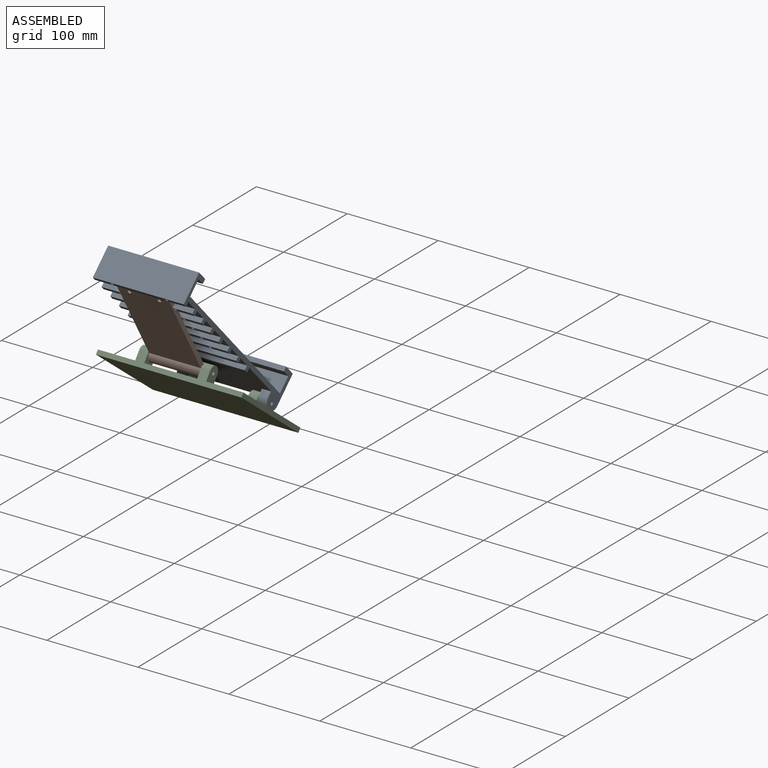
[diagram: assembled view]
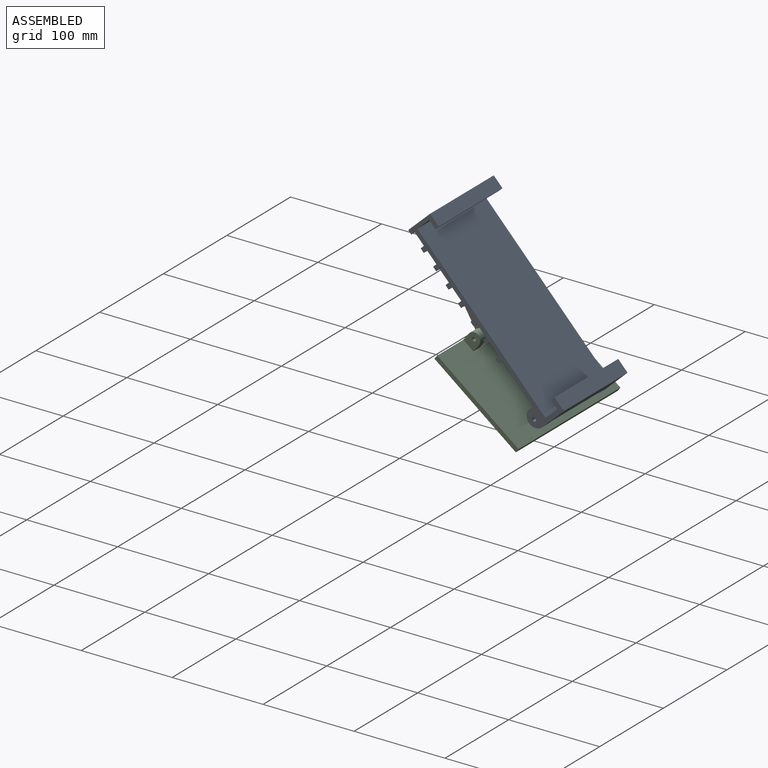
[diagram: assembled view, second angle]
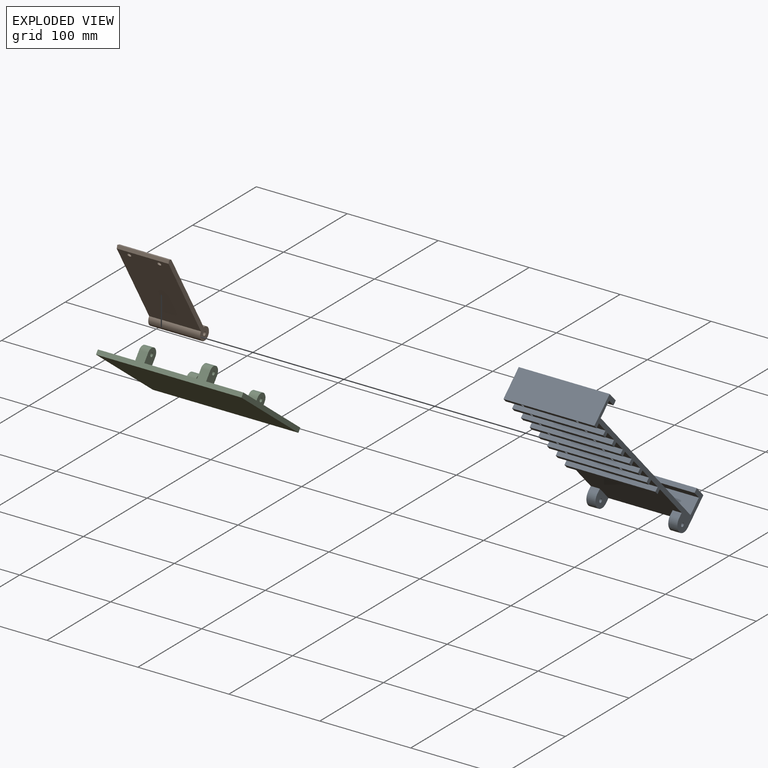
[diagram: exploded view]
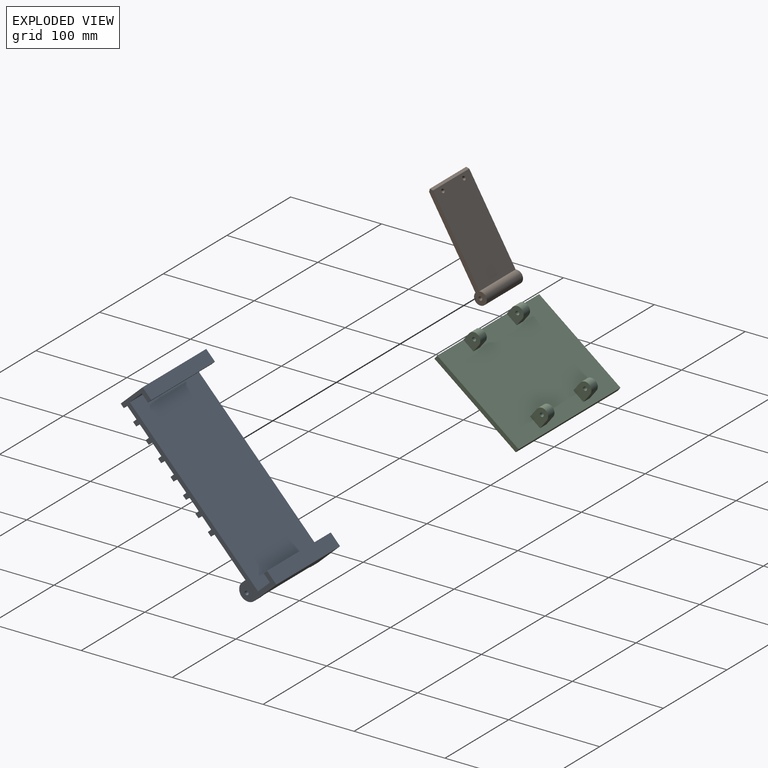
[diagram: exploded view, second angle]
ASSEMBLY  parts=3 mates=2
PART A: 76 faces, bbox 100x136.1x204 mm
  f0: plane 100x12.99mm, normal (0,-0.87,-0.5), area 1500mm2, adj f9,f11,f36,f69
  f1: plane 100x12.99mm, normal (0,-0.87,-0.5), area 1500mm2, adj f9,f11,f43,f62
  f2: plane 100x12.99mm, normal (0,-0.87,-0.5), area 1500mm2, adj f9,f11,f50,f55
  f3: plane 100x60.62mm, normal (0,-0.87,-0.5), area 6600mm2, adj f9,f11,f12,f21,f22,f23,f24,f52
  f4: plane 100x12.99mm, normal (0,-0.87,-0.5), area 1500mm2, adj f9,f11,f49,f53
  f5: plane 100x12.99mm, normal (0,-0.87,-0.5), area 1500mm2, adj f9,f11,f42,f56
  f6: plane 100x12.99mm, normal (0,-0.87,-0.5), area 1500mm2, adj f9,f11,f35,f63
  f7: plane 100x12.99mm, normal (0,-0.87,-0.5), area 1500mm2, adj f9,f11,f29,f70
  f8: plane 178.4x103mm, normal (0,0.87,0.5), area 20600mm2, adj f9,f11,f13,f17
  f9: plane 204.04x136.08mm, normal (-1,0,0), area 1825.2mm2, adj f0,f1,f2,f3,f4,f5,f6,f7
  f10: plane 100x28.58mm, normal (0,-0.5,0.87), area 3300mm2, adj f9,f11,f18,f30
  f11: plane 204.04x136.08mm, normal (1,0,0), area 1825.2mm2, adj f0,f1,f2,f3,f4,f5,f6,f7
  f12: plane 100x28.58mm, normal (0,0.5,-0.87), area 2900mm2, adj f3,f9,f11,f14,f22,f24,f25,f26
  f13: plane 100x15.59mm, normal (0,-0.5,0.87), area 1800mm2, adj f8,f9,f11,f15
  f14: plane 100x12.99mm, normal (0,0.87,0.5), area 1500mm2, adj f9,f11,f12,f16
  f15: plane 100x8.66mm, normal (0,-0.87,-0.5), area 1000mm2, adj f9,f11,f13,f16
  f16: plane 100x4.33mm, normal (0,-0.5,0.87), area 500mm2, adj f9,f11,f14,f15
  f17: plane 100x15.59mm, normal (0,0.5,-0.87), area 1800mm2, adj f8,f9,f11,f19
  f18: plane 100x12.12mm, normal (0,0.87,0.5), area 1400mm2, adj f9,f10,f11,f20
  f19: plane 100x8.66mm, normal (0,-0.87,-0.5), area 1000mm2, adj f9,f11,f17,f20
  f20: plane 100x4.33mm, normal (0,0.5,-0.87), area 500mm2, adj f9,f11,f18,f19
  f21: plane 10x4.33mm, normal (0,-0.5,0.87), area 50mm2, adj f3,f9,f22,f25
  f22: plane 21.16x19.33mm, normal (1,0,0), area 243.2mm2, adj f3,f12,f21,f25,f28
  f23: plane 10x4.33mm, normal (0,-0.5,0.87), area 50mm2, adj f3,f11,f24,f26
  f24: plane 21.16x19.33mm, normal (-1,0,0), area 243.2mm2, adj f3,f12,f23,f26,f27
  f25: cylinder r=10mm len=18.66mm, axis (1,0,0), area 314.2mm2, adj f9,f12,f21,f22
  f26: cylinder r=10mm len=18.66mm, axis (-1,0,0), area 314.2mm2, adj f11,f12,f23,f24
  f27: cylinder r=2.1mm len=10mm, axis (1,0,0), area 131.9mm2, adj f11,f24
  f28: cylinder r=2.1mm len=10mm, axis (1,0,0), area 131.9mm2, adj f9,f22
  f29: plane 100x4.33mm, normal (0,0.5,-0.87), area 500mm2, adj f7,f9,f11,f30
  f30: plane 100x4.33mm, normal (0,-0.87,-0.5), area 483.9mm2, adj f9,f10,f11,f29,f31,f33
  f31: cylinder r=1.6mm len=4.27mm, axis (0,-0.87,-0.5), area 30.2mm2, adj f30,f32
  f32: plane 3.2x2.77mm, normal (0,-0.87,-0.5), area 8mm2, adj f31
  f33: cylinder r=1.6mm len=4.27mm, axis (0,-0.87,-0.5), area 30.2mm2, adj f30,f34
  f34: plane 3.2x2.77mm, normal (0,-0.87,-0.5), area 8mm2, adj f33
  f35: plane 100x4.33mm, normal (0,0.5,-0.87), area 500mm2, adj f6,f9,f11,f37
  f36: plane 100x4.33mm, normal (0,-0.5,0.87), area 500mm2, adj f0,f9,f11,f37
  f37: plane 100x4.33mm, normal (0,-0.87,-0.5), area 483.9mm2, adj f9,f11,f35,f36,f38,f40
  f38: cylinder r=1.6mm len=4.27mm, axis (0,-0.87,-0.5), area 30.2mm2, adj f37,f39
  f39: plane 3.2x2.77mm, normal (0,-0.87,-0.5), area 8mm2, adj f38
  f40: cylinder r=1.6mm len=4.27mm, axis (0,-0.87,-0.5), area 30.2mm2, adj f37,f41
  f41: plane 3.2x2.77mm, normal (0,-0.87,-0.5), area 8mm2, adj f40
  f42: plane 100x4.33mm, normal (0,0.5,-0.87), area 500mm2, adj f5,f9,f11,f44
  f43: plane 100x4.33mm, normal (0,-0.5,0.87), area 500mm2, adj f1,f9,f11,f44
  f44: plane 100x4.33mm, normal (0,-0.87,-0.5), area 483.9mm2, adj f9,f11,f42,f43,f45,f47
  f45: cylinder r=1.6mm len=4.27mm, axis (0,-0.87,-0.5), area 30.2mm2, adj f44,f46
  f46: plane 3.2x2.77mm, normal (0,-0.87,-0.5), area 8mm2, adj f45
  f47: cylinder r=1.6mm len=4.27mm, axis (0,-0.87,-0.5), area 30.2mm2, adj f44,f48
  f48: plane 3.2x2.77mm, normal (0,-0.87,-0.5), area 8mm2, adj f47
  f49: plane 100x4.33mm, normal (0,0.5,-0.87), area 500mm2, adj f4,f9,f11,f51
  f50: plane 100x4.33mm, normal (0,-0.5,0.87), area 500mm2, adj f2,f9,f11,f51
  f51: plane 100x4.33mm, normal (0,-0.87,-0.5), area 500mm2, adj f9,f11,f49,f50
  f52: plane 100x4.33mm, normal (0,0.5,-0.87), area 500mm2, adj f3,f9,f11,f54
  f53: plane 100x4.33mm, normal (0,-0.5,0.87), area 500mm2, adj f4,f9,f11,f54
  f54: plane 100x4.33mm, normal (0,-0.87,-0.5), area 500mm2, adj f9,f11,f52,f53
  f55: plane 100x4.33mm, normal (0,0.5,-0.87), area 500mm2, adj f2,f9,f11,f57
  f56: plane 100x4.33mm, normal (0,-0.5,0.87), area 500mm2, adj f5,f9,f11,f57
  f57: plane 100x4.33mm, normal (0,-0.87,-0.5), area 483.9mm2, adj f9,f11,f55,f56,f58,f60
  f58: cylinder r=1.6mm len=4.27mm, axis (0,-0.87,-0.5), area 30.2mm2, adj f57,f59
  f59: plane 3.2x2.77mm, normal (0,-0.87,-0.5), area 8mm2, adj f58
  f60: cylinder r=1.6mm len=4.27mm, axis (0,-0.87,-0.5), area 30.2mm2, adj f57,f61
  f61: plane 3.2x2.77mm, normal (0,-0.87,-0.5), area 8mm2, adj f60
  f62: plane 100x4.33mm, normal (0,0.5,-0.87), area 500mm2, adj f1,f9,f11,f64
  f63: plane 100x4.33mm, normal (0,-0.5,0.87), area 500mm2, adj f6,f9,f11,f64
  f64: plane 100x4.33mm, normal (0,-0.87,-0.5), area 483.9mm2, adj f9,f11,f62,f63,f65,f67
  f65: cylinder r=1.6mm len=4.27mm, axis (0,-0.87,-0.5), area 30.2mm2, adj f64,f66
  f66: plane 3.2x2.77mm, normal (0,-0.87,-0.5), area 8mm2, adj f65
  f67: cylinder r=1.6mm len=4.27mm, axis (0,-0.87,-0.5), area 30.2mm2, adj f64,f68
  f68: plane 3.2x2.77mm, normal (0,-0.87,-0.5), area 8mm2, adj f67
  f69: plane 100x4.33mm, normal (0,0.5,-0.87), area 500mm2, adj f0,f9,f11,f71
  f70: plane 100x4.33mm, normal (0,-0.5,0.87), area 500mm2, adj f7,f9,f11,f71
  f71: plane 100x4.33mm, normal (0,-0.87,-0.5), area 483.9mm2, adj f9,f11,f69,f70,f72,f74
  f72: cylinder r=1.6mm len=4.27mm, axis (0,-0.87,-0.5), area 30.2mm2, adj f71,f73
  f73: plane 3.2x2.77mm, normal (0,-0.87,-0.5), area 8mm2, adj f72
  f74: cylinder r=1.6mm len=4.27mm, axis (0,-0.87,-0.5), area 30.2mm2, adj f71,f75
  f75: plane 3.2x2.77mm, normal (0,-0.87,-0.5), area 8mm2, adj f74
PART B: 10 faces, bbox 57x116.5x14 mm
  f0: cylinder r=7mm len=57mm, axis (1,0,0), area 2215.6mm2, adj f1,f2,f3,f4
  f1: plane 116.5x14mm, normal (-1,0,0), area 647.1mm2, adj f0,f3,f4,f5,f6,f7
  f2: plane 116.5x14mm, normal (1,0,0), area 647.1mm2, adj f0,f3,f4,f5,f6,f7
  f3: plane 100.46x57mm, normal (0,0,1), area 5698.6mm2, adj f0,f1,f2,f6,f8,f9
  f4: plane 100.46x57mm, normal (0,0,-1), area 5698.6mm2, adj f0,f1,f2,f7,f8,f9
  f5: cylinder r=2.1mm len=57mm, axis (1,0,0), area 752.1mm2, adj f1,f2
  f6: plane 57x2.5mm, normal (0,-0.71,0.71), area 201.5mm2, adj f1,f2,f3,f7
  f7: plane 57x2.5mm, normal (0,-0.71,-0.71), area 201.5mm2, adj f1,f2,f4,f6
  f8: cylinder r=2.1mm len=5mm, axis (0,0,1), area 66mm2, adj f3,f4
  f9: cylinder r=2.1mm len=5mm, axis (0,0,1), area 66mm2, adj f3,f4
PART C: 29 faces, bbox 160x113x24 mm
  f0: plane 160x113.01mm, normal (0,0,1), area 17520.8mm2, adj f2,f4,f5,f6,f7,f10,f11,f12
  f1: plane 160x113.01mm, normal (0,0,-1), area 18080.8mm2, adj f2,f15,f25,f26
  f2: plane 160x5mm, normal (0,1,0), area 800mm2, adj f0,f1,f25,f26
  f3: cylinder r=7mm len=14mm, axis (-1,0,0), area 222.5mm2, adj f4,f5,f6,f8
  f4: plane 19x14mm, normal (1,0,0), area 231.1mm2, adj f0,f3,f6,f7,f8,f28
  f5: plane 19x14mm, normal (-1,0,0), area 231.1mm2, adj f0,f3,f6,f7,f8,f28
  f6: plane 11.74x10mm, normal (0,1,0), area 117.4mm2, adj f0,f3,f4,f5
  f7: plane 12x10mm, normal (0,-1,0), area 120mm2, adj f0,f4,f5,f8
  f8: plane 10x0mm, normal (0,0,1), area 0mm2, adj f3,f4,f5,f7
  f9: cylinder r=7mm len=14mm, axis (1,0,0), area 219.9mm2, adj f10,f11,f12,f13
  f10: plane 19x14mm, normal (-1,0,0), area 231.1mm2, adj f0,f9,f12,f13,f27
  f11: plane 19x14mm, normal (1,0,0), area 231.1mm2, adj f0,f9,f12,f13,f27
  f12: plane 12x10mm, normal (0,-1,0), area 120mm2, adj f0,f9,f10,f11
  f13: plane 12x10mm, normal (0,1,0), area 120mm2, adj f0,f9,f10,f11
  f14: plane 10.09x10mm, normal (0,1,0), area 100.9mm2, adj f0,f16,f17,f18
  f15: plane 160x15.09mm, normal (0,-1,0), area 1001.9mm2, adj f0,f1,f16,f17,f18,f19,f21,f22
  f16: cylinder r=7mm len=14mm, axis (-1,0,0), area 219.9mm2, adj f14,f15,f17,f18
  f17: plane 17.09x14mm, normal (1,0,0), area 204.4mm2, adj f0,f14,f15,f16,f24
  f18: plane 17.09x14mm, normal (-1,0,0), area 204.4mm2, adj f0,f14,f15,f16,f24
  f19: cylinder r=7mm len=14mm, axis (1,0,0), area 219.9mm2, adj f15,f20,f21,f22
  f20: plane 10.09x10mm, normal (0,1,0), area 100.9mm2, adj f0,f19,f21,f22
  f21: plane 17.09x14mm, normal (-1,0,0), area 204.4mm2, adj f0,f15,f19,f20,f23
  f22: plane 17.09x14mm, normal (1,0,0), area 204.4mm2, adj f0,f15,f19,f20,f23
  f23: cylinder r=2.1mm len=10mm, axis (1,0,0), area 131.9mm2, adj f21,f22
  f24: cylinder r=2.1mm len=10mm, axis (1,0,0), area 131.9mm2, adj f17,f18
  f25: plane 113.01x5mm, normal (1,0,0), area 565mm2, adj f0,f1,f2,f15
  f26: plane 113.01x5mm, normal (-1,0,0), area 565mm2, adj f0,f1,f2,f15
  f27: cylinder r=2.1mm len=10mm, axis (1,0,0), area 131.9mm2, adj f10,f11
  f28: cylinder r=2.1mm len=10mm, axis (1,0,0), area 131.9mm2, adj f4,f5
PLACE A rot(axis=(1,0,0),13.2deg) t=(63.53,-134.24,-72.11)mm
PLACE B rot(axis=(-1,0,0),59.5deg) t=(86.54,-207.81,-96.73)mm
PLACE C rot(axis=(-1,0,0),37.7deg) t=(62.53,-47.74,-77.45)mm fixed
MATE revolute A.f27 <-> C.f9  axis (1,0,0) through (18.54,-116.1,-161.45)mm
MATE revolute C.f19 <-> B.f0  axis (-1,0,0) through (86.54,-190.58,-106.27)mm
